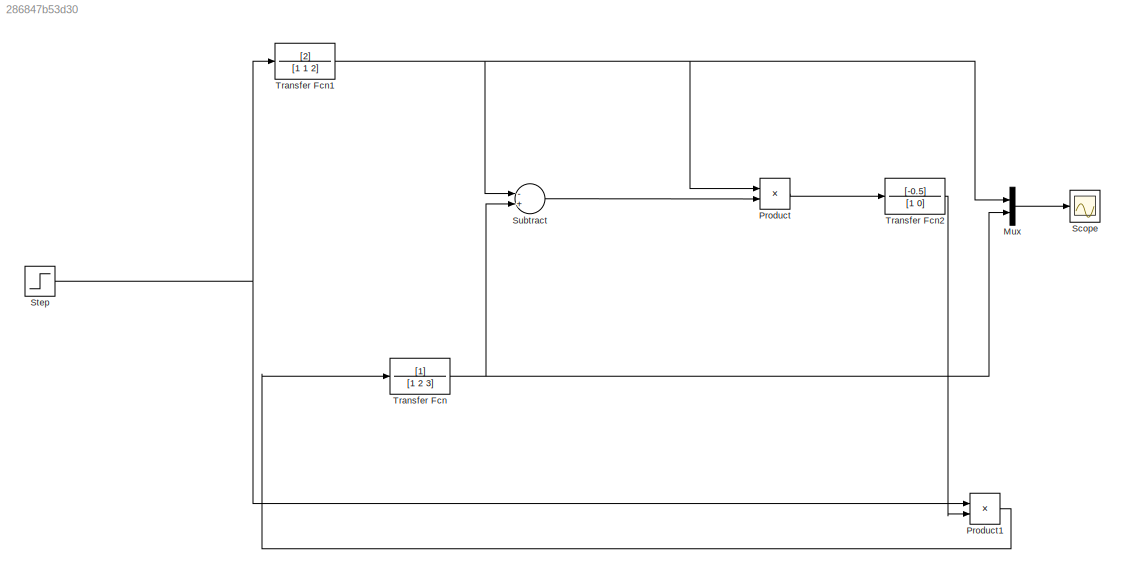
MODEL slx_286847b53d30
KIND model
CONFIG AbsTol = auto
CONFIG FixedStep = auto
CONFIG MaxStep = auto
CONFIG MinStep = auto
CONFIG RelTol = 1e-3
CONFIG SampleTimeConstraint = Unconstrained
CONFIG Solver = VariableStepAuto
CONFIG SolverMode = Auto
CONFIG SolverName = VariableStepAuto
CONFIG StartTime = 0.0
CONFIG StopTime = 100
BLOCK [Mux] Mux
  DisplayOption = bar
  Inputs = 2
  Ports = [2, 1]
BLOCK [Product] Product
  InputSameDT = off
  OutDataTypeStr = Inherit: Inherit via internal rule
  Ports = [2, 1]
  RndMeth = Floor
  SaturateOnIntegerOverflow = off
BLOCK [Product] Product1
  InputSameDT = off
  OutDataTypeStr = Inherit: Inherit via internal rule
  Ports = [2, 1]
  RndMeth = Floor
  SaturateOnIntegerOverflow = off
BLOCK [Scope] Scope
  Ports = [1]
  ScopeSpecificationString = Simulink.scopes.TimeScopeBlockCfg('CurrentConfiguration', extmgr.ConfigurationSet(extmgr.Configuration('Core','General UI',true),extmgr.Configuration('Core','Source UI',true),extmgr.Configuration('Sources','WiredSimulink',true),extmgr.Configuration('Visuals','Time Domain',true,'SerializedDisplays',{struct('MinYLimReal','-0.535','MaxYLimReal','4.81497','YLabelReal','','MinYLimMag','0.00000','MaxYLi...<+1397ch>
BLOCK [Step] Step
  After = 2.5
  SampleTime = 0
BLOCK [Sum] Subtract
  InputSameDT = off
  Inputs = -+
  OutDataTypeStr = Inherit: Inherit via internal rule
  Ports = [2, 1]
  SaturateOnIntegerOverflow = off
BLOCK [TransferFcn] Transfer Fcn
  Denominator = [1 2 3]
BLOCK [TransferFcn] Transfer Fcn1
  ContinuousStateAttributes = 'reference'
  Denominator = [1 1 2]
  Numerator = [2]
BLOCK [TransferFcn] Transfer Fcn2
  Denominator = [1 0]
  Numerator = [-0.5]
LINE Mux:1 -> Scope:1
LINE Product1:1 -> Transfer Fcn:1
LINE Product:1 -> Transfer Fcn2:1
NET Step:1 -> Product1:1, Transfer Fcn1:1
LINE Subtract:1 -> Product:2
NET Transfer Fcn1:1 -> Mux:1, Product:1, Subtract:1
LINE Transfer Fcn2:1 -> Product1:2
NET Transfer Fcn:1 -> Mux:2, Subtract:2
note: NET lines group one-source signal fan-out (src -> all destinations, sorted); 1:1 wires keep LINE
